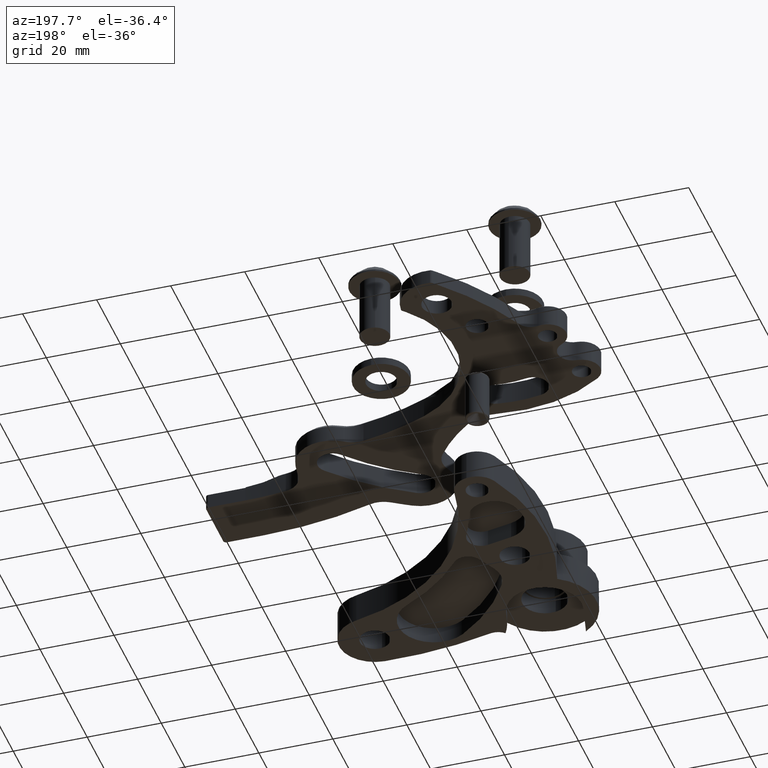
[diagram: clean part render]
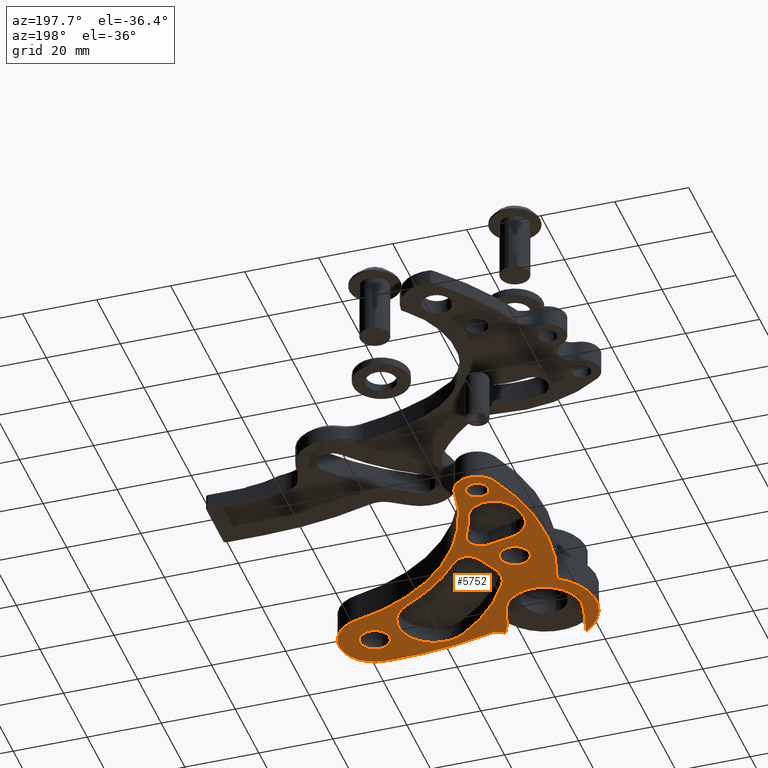
[diagram: same view with one face highlighted and labeled with its STEP entity id]
A machine part, auxiliary view. The second image highlights one B-rep face of the part: STEP entity #5752.
In plain terms, the highlighted planar face has unit normal (0, 0, -1).
Its self-contained STEP definition (entity closure, byte-faithful):
#9 = DIRECTION ( 'NONE',  ( 0.0000000000000000000, 0.0000000000000000000, 1.000000000000000000 ) ) ;
#18 = DIRECTION ( 'NONE',  ( 1.000000000000000000, 0.0000000000000000000, 0.0000000000000000000 ) ) ;
#46 = AXIS2_PLACEMENT_3D ( 'NONE', #7643, #3933, #238 ) ;
#73 = CARTESIAN_POINT ( 'NONE',  ( 4.242950505890087598, -6.105277195369654741, 0.0000000000000000000 ) ) ;
#152 = DIRECTION ( 'NONE',  ( 1.000000000000000000, 0.0000000000000000000, 0.0000000000000000000 ) ) ;
#155 = DIRECTION ( 'NONE',  ( 1.000000000000000000, 0.0000000000000000000, 0.0000000000000000000 ) ) ;
#184 = VERTEX_POINT ( 'NONE', #574 ) ;
#225 = DIRECTION ( 'NONE',  ( 1.000000000000000000, 0.0000000000000000000, 0.0000000000000000000 ) ) ;
#232 = CARTESIAN_POINT ( 'NONE',  ( 4.673074138817383982, -5.638051163920757780, 0.0000000000000000000 ) ) ;
#234 = CIRCLE ( 'NONE', #4785, 0.2360000000002146214 ) ;
#238 = DIRECTION ( 'NONE',  ( -1.000000000000000000, 0.0000000000000000000, 0.0000000000000000000 ) ) ;
#240 = EDGE_LOOP ( 'NONE', ( #3609, #1691, #2485, #3275, #4920, #7852, #1302, #1090, #277, #7911, #6828, #681, #5730, #7973 ) ) ;
#274 = AXIS2_PLACEMENT_3D ( 'NONE', #5948, #2251, #6574 ) ;
#277 = ORIENTED_EDGE ( 'NONE', *, *, #604, .T. ) ;
#308 = EDGE_CURVE ( 'NONE', #4440, #734, #7204, .T. ) ;
#332 = ORIENTED_EDGE ( 'NONE', *, *, #7198, .F. ) ;
#354 = CARTESIAN_POINT ( 'NONE',  ( 4.848425688291787772, -5.021694723945000938, 0.0000000000000000000 ) ) ;
#358 = DIRECTION ( 'NONE',  ( 1.000000000000000000, 0.0000000000000000000, 0.0000000000000000000 ) ) ;
#426 = AXIS2_PLACEMENT_3D ( 'NONE', #5370, #1674, #5985 ) ;
#433 = ORIENTED_EDGE ( 'NONE', *, *, #6178, .F. ) ;
#436 = FACE_BOUND ( 'NONE', #760, .T. ) ;
#458 = EDGE_CURVE ( 'NONE', #8011, #5266, #234, .T. ) ;
#517 = EDGE_CURVE ( 'NONE', #1740, #3239, #7878, .T. ) ;
#519 = AXIS2_PLACEMENT_3D ( 'NONE', #667, #4984, #1283 ) ;
#535 = EDGE_CURVE ( 'NONE', #7389, #4834, #6022, .T. ) ;
#547 = CARTESIAN_POINT ( 'NONE',  ( 5.146183328783787481, -6.945606711428000679, 0.0000000000000000000 ) ) ;
#562 = VERTEX_POINT ( 'NONE', #2495 ) ;
#570 = CIRCLE ( 'NONE', #8033, 0.1575000000000001676 ) ;
#574 = CARTESIAN_POINT ( 'NONE',  ( 4.533425688291787381, -5.021694723945000938, 0.0000000000000000000 ) ) ;
#604 = EDGE_CURVE ( 'NONE', #5470, #3002, #7468, .T. ) ;
#621 = FACE_OUTER_BOUND ( 'NONE', #240, .T. ) ;
#636 = CARTESIAN_POINT ( 'NONE',  ( 6.470850393701488734, -7.125834463380545714, 0.0000000000000000000 ) ) ;
#642 = CARTESIAN_POINT ( 'NONE',  ( 5.303683328783787232, -6.945606711428000679, 0.0000000000000000000 ) ) ;
#667 = CARTESIAN_POINT ( 'NONE',  ( 6.470850393700847469, -7.125834463381091055, 0.0000000000000000000 ) ) ;
#681 = ORIENTED_EDGE ( 'NONE', *, *, #1224, .F. ) ;
#734 = VERTEX_POINT ( 'NONE', #3314 ) ;
#760 = EDGE_LOOP ( 'NONE', ( #1310, #4212, #4793, #6664, #433, #4274, #6673 ) ) ;
#810 = VERTEX_POINT ( 'NONE', #4626 ) ;
#830 = CARTESIAN_POINT ( 'NONE',  ( 4.496541554581668265, -6.421401364217943275, 0.0000000000000000000 ) ) ;
#831 = CIRCLE ( 'NONE', #4098, 0.1499999999998582467 ) ;
#848 = AXIS2_PLACEMENT_3D ( 'NONE', #7548, #3843, #155 ) ;
#857 = DIRECTION ( 'NONE',  ( 1.000000000000000000, 0.0000000000000000000, 0.0000000000000000000 ) ) ;
#865 = CARTESIAN_POINT ( 'NONE',  ( 6.255757893114771484, -7.073029756062637396, 0.0000000000000000000 ) ) ;
#912 = CIRCLE ( 'NONE', #7780, 0.3799999999999850164 ) ;
#930 = DIRECTION ( 'NONE',  ( 0.0000000000000000000, 0.0000000000000000000, 1.000000000000000000 ) ) ;
#949 = EDGE_LOOP ( 'NONE', ( #6566, #3758 ) ) ;
#984 = DIRECTION ( 'NONE',  ( 0.0000000000000000000, 0.0000000000000000000, 1.000000000000000000 ) ) ;
#1027 = AXIS2_PLACEMENT_3D ( 'NONE', #2547, #6893, #3163 ) ;
#1087 = VERTEX_POINT ( 'NONE', #1370 ) ;
#1090 = ORIENTED_EDGE ( 'NONE', *, *, #4842, .T. ) ;
#1135 = DIRECTION ( 'NONE',  ( 1.000000000000000000, 0.0000000000000000000, -0.0000000000000000000 ) ) ;
#1196 = CARTESIAN_POINT ( 'NONE',  ( 5.903692971494557185, -5.050970220932416765, 0.0000000000000000000 ) ) ;
#1224 = EDGE_CURVE ( 'NONE', #3239, #4571, #3188, .T. ) ;
#1230 = DIRECTION ( 'NONE',  ( 0.0000000000000000000, 0.0000000000000000000, 1.000000000000000000 ) ) ;
#1240 = AXIS2_PLACEMENT_3D ( 'NONE', #6327, #2609, #6953 ) ;
#1253 = DIRECTION ( 'NONE',  ( 1.000000000000000000, 0.0000000000000000000, 0.0000000000000000000 ) ) ;
#1258 = DIRECTION ( 'NONE',  ( 1.000000000000000000, 0.0000000000000000000, 0.0000000000000000000 ) ) ;
#1283 = DIRECTION ( 'NONE',  ( 1.000000000000000000, 0.0000000000000000000, 0.0000000000000000000 ) ) ;
#1302 = ORIENTED_EDGE ( 'NONE', *, *, #6449, .T. ) ;
#1310 = ORIENTED_EDGE ( 'NONE', *, *, #2166, .F. ) ;
#1370 = CARTESIAN_POINT ( 'NONE',  ( 6.004372715346415923, -7.335736338836440495, 0.0000000000000000000 ) ) ;
#1479 = CARTESIAN_POINT ( 'NONE',  ( 5.903692971495518194, -5.050970220930642185, 0.0000000000000000000 ) ) ;
#1480 = CARTESIAN_POINT ( 'NONE',  ( 4.243471213325867630, -6.118072944888331754, 0.0000000000000000000 ) ) ;
#1482 = CARTESIAN_POINT ( 'NONE',  ( 5.303683328783787232, -6.945606711428000679, 0.0000000000000000000 ) ) ;
#1486 = CARTESIAN_POINT ( 'NONE',  ( 5.418336661430401158, -6.594220646339473468, 0.0000000000000000000 ) ) ;
#1528 = CARTESIAN_POINT ( 'NONE',  ( 5.890060344663274883, -7.337912890924382481, 0.0000000000000000000 ) ) ;
#1539 = VERTEX_POINT ( 'NONE', #3776 ) ;
#1659 = EDGE_CURVE ( 'NONE', #3803, #3964, #7084, .T. ) ;
#1674 = DIRECTION ( 'NONE',  ( 0.0000000000000000000, 0.0000000000000000000, 1.000000000000000000 ) ) ;
#1691 = ORIENTED_EDGE ( 'NONE', *, *, #6928, .F. ) ;
#1692 = DIRECTION ( 'NONE',  ( 0.0000000000000000000, 0.0000000000000000000, 1.000000000000000000 ) ) ;
#1704 = CARTESIAN_POINT ( 'NONE',  ( 4.496541554581668265, -6.421401364217943275, 0.0000000000000000000 ) ) ;
#1740 = VERTEX_POINT ( 'NONE', #3340 ) ;
#1768 = AXIS2_PLACEMENT_3D ( 'NONE', #1196, #5490, #1820 ) ;
#1783 = CARTESIAN_POINT ( 'NONE',  ( 7.081488472039823456, -4.963106718685666330, 0.0000000000000000000 ) ) ;
#1806 = CARTESIAN_POINT ( 'NONE',  ( 6.470850393701488734, -7.125834463380545714, 0.0000000000000000000 ) ) ;
#1820 = DIRECTION ( 'NONE',  ( 1.000000000000000000, 0.0000000000000000000, 0.0000000000000000000 ) ) ;
#1821 = VERTEX_POINT ( 'NONE', #2219 ) ;
#1868 = CARTESIAN_POINT ( 'NONE',  ( 5.594131519094850624, -6.791135217125276569, 0.0000000000000000000 ) ) ;
#1878 = AXIS2_PLACEMENT_3D ( 'NONE', #6825, #3100, #7443 ) ;
#1959 = CIRCLE ( 'NONE', #4711, 0.1500000000004800271 ) ;
#1988 = ORIENTED_EDGE ( 'NONE', *, *, #3767, .F. ) ;
#1998 = EDGE_LOOP ( 'NONE', ( #1988, #332 ) ) ;
#2045 = CIRCLE ( 'NONE', #7505, 0.1499999999998582467 ) ;
#2052 = CIRCLE ( 'NONE', #4140, 0.2360000000002146214 ) ;
#2063 = EDGE_CURVE ( 'NONE', #3002, #810, #2329, .T. ) ;
#2070 = FACE_BOUND ( 'NONE', #7446, .T. ) ;
#2072 = EDGE_CURVE ( 'NONE', #2859, #8011, #5599, .T. ) ;
#2104 = DIRECTION ( 'NONE',  ( 1.000000000000000000, 0.0000000000000000000, 0.0000000000000000000 ) ) ;
#2106 = DIRECTION ( 'NONE',  ( 1.000000000000000000, 0.0000000000000000000, 0.0000000000000000000 ) ) ;
#2166 = EDGE_CURVE ( 'NONE', #4786, #4068, #2045, .T. ) ;
#2176 = AXIS2_PLACEMENT_3D ( 'NONE', #6072, #2372, #6700 ) ;
#2182 = EDGE_CURVE ( 'NONE', #5397, #562, #3664, .T. ) ;
#2219 = CARTESIAN_POINT ( 'NONE',  ( 3.823784160112180253, -6.983717134750706990, -4.666294061864421554E-61 ) ) ;
#2251 = DIRECTION ( 'NONE',  ( -0.0000000000000000000, -0.0000000000000000000, -1.000000000000000000 ) ) ;
#2325 = CARTESIAN_POINT ( 'NONE',  ( 6.534977047736489908, -6.898713851717102052, 0.0000000000000000000 ) ) ;
#2329 = CIRCLE ( 'NONE', #46, 0.1574803149606295305 ) ;
#2338 = CIRCLE ( 'NONE', #2614, 0.2629615186702531915 ) ;
#2372 = DIRECTION ( 'NONE',  ( -0.0000000000000000000, -0.0000000000000000000, -1.000000000000000000 ) ) ;
#2378 = DIRECTION ( 'NONE',  ( 1.000000000000000000, 0.0000000000000000000, 0.0000000000000000000 ) ) ;
#2405 = DIRECTION ( 'NONE',  ( 1.000000000000000000, 0.0000000000000000000, 0.0000000000000000000 ) ) ;
#2407 = AXIS2_PLACEMENT_3D ( 'NONE', #7628, #3920, #225 ) ;
#2408 = CARTESIAN_POINT ( 'NONE',  ( 4.319487918727446640, -4.941482609266768300, 0.0000000000000000000 ) ) ;
#2485 = ORIENTED_EDGE ( 'NONE', *, *, #2072, .T. ) ;
#2489 = CIRCLE ( 'NONE', #7449, 0.1574999999999996125 ) ;
#2495 = CARTESIAN_POINT ( 'NONE',  ( 5.602407250917753601, -7.057393734671830288, 0.0000000000000000000 ) ) ;
#2547 = CARTESIAN_POINT ( 'NONE',  ( 4.085990898365237989, -6.118072944888331754, 0.0000000000000000000 ) ) ;
#2559 = CARTESIAN_POINT ( 'NONE',  ( 4.690925688291788020, -5.021694723945000938, 0.0000000000000000000 ) ) ;
#2609 = DIRECTION ( 'NONE',  ( 0.0000000000000000000, 0.0000000000000000000, 1.000000000000000000 ) ) ;
#2614 = AXIS2_PLACEMENT_3D ( 'NONE', #7037, #3311, #7656 ) ;
#2663 = DIRECTION ( 'NONE',  ( -0.9134764211361069419, 0.4068916662065832912, 0.0000000000000000000 ) ) ;
#2805 = CIRCLE ( 'NONE', #848, 0.2895186497047291807 ) ;
#2859 = VERTEX_POINT ( 'NONE', #7499 ) ;
#2886 = CARTESIAN_POINT ( 'NONE',  ( 6.113375536673084198, -6.839343158377569232, 0.0000000000000000000 ) ) ;
#2895 = EDGE_CURVE ( 'NONE', #562, #6108, #2805, .T. ) ;
#2919 = EDGE_CURVE ( 'NONE', #4834, #6820, #7560, .T. ) ;
#2938 = CARTESIAN_POINT ( 'NONE',  ( 6.706850393701703439, -7.125834463380545714, 0.0000000000000000000 ) ) ;
#2985 = CIRCLE ( 'NONE', #7735, 0.1574999999999996125 ) ;
#3002 = VERTEX_POINT ( 'NONE', #1480 ) ;
#3005 = CIRCLE ( 'NONE', #4183, 0.3764674611655223213 ) ;
#3007 = DIRECTION ( 'NONE',  ( -0.0000000000000000000, -0.0000000000000000000, -1.000000000000000000 ) ) ;
#3100 = DIRECTION ( 'NONE',  ( 0.0000000000000000000, 0.0000000000000000000, 1.000000000000000000 ) ) ;
#3161 = VERTEX_POINT ( 'NONE', #4047 ) ;
#3163 = DIRECTION ( 'NONE',  ( -1.000000000000000000, 0.0000000000000000000, 0.0000000000000000000 ) ) ;
#3180 = DIRECTION ( 'NONE',  ( 1.000000000000000000, 0.0000000000000000000, 0.0000000000000000000 ) ) ;
#3188 = LINE ( 'NONE', #830, #7952 ) ;
#3226 = CARTESIAN_POINT ( 'NONE',  ( 4.690925688291715190, -5.021694723944730043, 0.0000000000000000000 ) ) ;
#3239 = VERTEX_POINT ( 'NONE', #1704 ) ;
#3275 = ORIENTED_EDGE ( 'NONE', *, *, #458, .T. ) ;
#3285 = DIRECTION ( 'NONE',  ( 0.9134764211361084962, -0.4068916662065798495, 0.0000000000000000000 ) ) ;
#3292 = EDGE_CURVE ( 'NONE', #3964, #1539, #3871, .T. ) ;
#3305 = CARTESIAN_POINT ( 'NONE',  ( 4.362727018975751214, -5.857604062458389826, 0.0000000000000000000 ) ) ;
#3311 = DIRECTION ( 'NONE',  ( 0.0000000000000000000, 0.0000000000000000000, 1.000000000000000000 ) ) ;
#3314 = CARTESIAN_POINT ( 'NONE',  ( 6.588850393700847796, -7.125834463381091055, 0.0000000000000000000 ) ) ;
#3340 = CARTESIAN_POINT ( 'NONE',  ( 4.730048772610573771, -6.781037750492001415, 0.0000000000000000000 ) ) ;
#3369 = EDGE_LOOP ( 'NONE', ( #4814, #7255 ) ) ;
#3510 = AXIS2_PLACEMENT_3D ( 'NONE', #3589, #4828, #1135 ) ;
#3515 = FACE_BOUND ( 'NONE', #1998, .T. ) ;
#3535 = CARTESIAN_POINT ( 'NONE',  ( 5.418336661430401158, -6.594220646339473468, 0.0000000000000000000 ) ) ;
#3589 = CARTESIAN_POINT ( 'NONE',  ( 3.723327805188316741, -7.764460527275871549, 0.0000000000000000000 ) ) ;
#3598 = EDGE_CURVE ( 'NONE', #184, #5104, #4644, .T. ) ;
#3599 = CIRCLE ( 'NONE', #2176, 2.011280614520357446 ) ;
#3605 = CARTESIAN_POINT ( 'NONE',  ( 6.352850393700847142, -7.125834463381091055, 0.0000000000000000000 ) ) ;
#3609 = ORIENTED_EDGE ( 'NONE', *, *, #6061, .F. ) ;
#3664 = LINE ( 'NONE', #6290, #5129 ) ;
#3691 = EDGE_CURVE ( 'NONE', #5104, #184, #570, .T. ) ;
#3710 = CARTESIAN_POINT ( 'NONE',  ( 6.192151192244640612, -5.049391717675441704, 0.0000000000000000000 ) ) ;
#3758 = ORIENTED_EDGE ( 'NONE', *, *, #308, .F. ) ;
#3767 = EDGE_CURVE ( 'NONE', #4479, #5347, #2489, .T. ) ;
#3776 = CARTESIAN_POINT ( 'NONE',  ( 5.832776280838907645, -6.665523734812476064, 0.0000000000000000000 ) ) ;
#3782 = VECTOR ( 'NONE', #6645, 39.37007874015748854 ) ;
#3803 = VERTEX_POINT ( 'NONE', #865 ) ;
#3840 = DIRECTION ( 'NONE',  ( 0.0000000000000000000, 0.0000000000000000000, 1.000000000000000000 ) ) ;
#3843 = DIRECTION ( 'NONE',  ( 0.0000000000000000000, 0.0000000000000000000, 1.000000000000000000 ) ) ;
#3857 = DIRECTION ( 'NONE',  ( 1.000000000000000000, 0.0000000000000000000, 0.0000000000000000000 ) ) ;
#3871 = CIRCLE ( 'NONE', #7738, 2.111280614520993915 ) ;
#3920 = DIRECTION ( 'NONE',  ( 0.0000000000000000000, 0.0000000000000000000, 1.000000000000000000 ) ) ;
#3932 = AXIS2_PLACEMENT_3D ( 'NONE', #6723, #3007, #7347 ) ;
#3933 = DIRECTION ( 'NONE',  ( -0.0000000000000000000, -0.0000000000000000000, -1.000000000000000000 ) ) ;
#3964 = VERTEX_POINT ( 'NONE', #2886 ) ;
#3982 = LINE ( 'NONE', #3535, #3782 ) ;
#4019 = ORIENTED_EDGE ( 'NONE', *, *, #2182, .F. ) ;
#4038 = DIRECTION ( 'NONE',  ( 0.0000000000000000000, 0.0000000000000000000, 1.000000000000000000 ) ) ;
#4047 = CARTESIAN_POINT ( 'NONE',  ( 5.490686540299518192, -6.351218762874684565, 0.0000000000000000000 ) ) ;
#4068 = VERTEX_POINT ( 'NONE', #7325 ) ;
#4071 = EDGE_CURVE ( 'NONE', #6108, #1087, #5957, .T. ) ;
#4098 = AXIS2_PLACEMENT_3D ( 'NONE', #5418, #6792, #18 ) ;
#4140 = AXIS2_PLACEMENT_3D ( 'NONE', #636, #4948, #1253 ) ;
#4183 = AXIS2_PLACEMENT_3D ( 'NONE', #4683, #984, #5296 ) ;
#4198 = AXIS2_PLACEMENT_3D ( 'NONE', #7755, #4038, #358 ) ;
#4212 = ORIENTED_EDGE ( 'NONE', *, *, #7000, .F. ) ;
#4240 = CARTESIAN_POINT ( 'NONE',  ( 5.200115906594594328, -6.655692891948683965, 0.0000000000000000000 ) ) ;
#4248 = CIRCLE ( 'NONE', #519, 0.1180000000000002158 ) ;
#4274 = ORIENTED_EDGE ( 'NONE', *, *, #5787, .F. ) ;
#4326 = DIRECTION ( 'NONE',  ( 1.000000000000000000, 0.0000000000000000000, 0.0000000000000000000 ) ) ;
#4440 = VERTEX_POINT ( 'NONE', #3605 ) ;
#4464 = DIRECTION ( 'NONE',  ( 0.03106656399508397198, -0.9995173178097213063, -0.0000000000000000000 ) ) ;
#4479 = VERTEX_POINT ( 'NONE', #6712 ) ;
#4495 = AXIS2_PLACEMENT_3D ( 'NONE', #232, #4545, #857 ) ;
#4545 = DIRECTION ( 'NONE',  ( -0.0000000000000000000, -0.0000000000000000000, -1.000000000000000000 ) ) ;
#4571 = VERTEX_POINT ( 'NONE', #6823 ) ;
#4624 = CARTESIAN_POINT ( 'NONE',  ( 5.744059116766789153, -6.786475232526000489, 0.0000000000000000000 ) ) ;
#4626 = CARTESIAN_POINT ( 'NONE',  ( 4.175053072887833672, -6.247949727530211383, 0.0000000000000000000 ) ) ;
#4628 = VERTEX_POINT ( 'NONE', #6878 ) ;
#4644 = CIRCLE ( 'NONE', #426, 0.1575000000000001676 ) ;
#4683 = CARTESIAN_POINT ( 'NONE',  ( 4.707086355928432830, -5.705471237696857933, 0.0000000000000000000 ) ) ;
#4711 = AXIS2_PLACEMENT_3D ( 'NONE', #4624, #930, #5245 ) ;
#4785 = AXIS2_PLACEMENT_3D ( 'NONE', #1806, #6117, #2405 ) ;
#4786 = VERTEX_POINT ( 'NONE', #1486 ) ;
#4793 = ORIENTED_EDGE ( 'NONE', *, *, #2919, .F. ) ;
#4814 = ORIENTED_EDGE ( 'NONE', *, *, #3691, .F. ) ;
#4828 = DIRECTION ( 'NONE',  ( 0.0000000000000000000, 0.0000000000000000000, 1.000000000000000000 ) ) ;
#4834 = VERTEX_POINT ( 'NONE', #7111 ) ;
#4842 = EDGE_CURVE ( 'NONE', #7122, #5470, #6316, .T. ) ;
#4920 = ORIENTED_EDGE ( 'NONE', *, *, #6881, .T. ) ;
#4926 = CARTESIAN_POINT ( 'NONE',  ( 4.336347985208998779, -6.781037750492001415, 0.0000000000000000000 ) ) ;
#4948 = DIRECTION ( 'NONE',  ( 0.0000000000000000000, 0.0000000000000000000, 1.000000000000000000 ) ) ;
#4953 = DIRECTION ( 'NONE',  ( 0.0000000000000000000, 0.0000000000000000000, 1.000000000000000000 ) ) ;
#4963 = VERTEX_POINT ( 'NONE', #7841 ) ;
#4984 = DIRECTION ( 'NONE',  ( 0.0000000000000000000, 0.0000000000000000000, 1.000000000000000000 ) ) ;
#5104 = VERTEX_POINT ( 'NONE', #354 ) ;
#5129 = VECTOR ( 'NONE', #4464, 39.37007874015748143 ) ;
#5156 = FACE_BOUND ( 'NONE', #949, .T. ) ;
#5208 = ORIENTED_EDGE ( 'NONE', *, *, #1659, .F. ) ;
#5245 = DIRECTION ( 'NONE',  ( 1.000000000000000000, 0.0000000000000000000, 0.0000000000000000000 ) ) ;
#5255 = VERTEX_POINT ( 'NONE', #2325 ) ;
#5257 = VECTOR ( 'NONE', #3285, 39.37007874015748143 ) ;
#5266 = VERTEX_POINT ( 'NONE', #2938 ) ;
#5281 = EDGE_CURVE ( 'NONE', #5255, #4628, #3599, .T. ) ;
#5296 = DIRECTION ( 'NONE',  ( 1.000000000000000000, 0.0000000000000000000, 0.0000000000000000000 ) ) ;
#5347 = VERTEX_POINT ( 'NONE', #547 ) ;
#5370 = CARTESIAN_POINT ( 'NONE',  ( 4.690925688291788020, -5.021694723945000938, 0.0000000000000000000 ) ) ;
#5384 = CARTESIAN_POINT ( 'NONE',  ( 4.336347985208998779, -6.781037750492001415, 0.0000000000000000000 ) ) ;
#5397 = VERTEX_POINT ( 'NONE', #1868 ) ;
#5418 = CARTESIAN_POINT ( 'NONE',  ( 5.377664951355036749, -6.449839858145534954, 0.0000000000000000000 ) ) ;
#5428 = ORIENTED_EDGE ( 'NONE', *, *, #6563, .F. ) ;
#5436 = LINE ( 'NONE', #7014, #5257 ) ;
#5470 = VERTEX_POINT ( 'NONE', #73 ) ;
#5490 = DIRECTION ( 'NONE',  ( 0.0000000000000000000, 0.0000000000000000000, 1.000000000000000000 ) ) ;
#5536 = DIRECTION ( 'NONE',  ( 1.000000000000000000, 0.0000000000000000000, 0.0000000000000000000 ) ) ;
#5583 = AXIS2_PLACEMENT_3D ( 'NONE', #4926, #1230, #5536 ) ;
#5599 = CIRCLE ( 'NONE', #7254, 2.386983302157748899 ) ;
#5609 = EDGE_CURVE ( 'NONE', #4571, #810, #7793, .T. ) ;
#5662 = EDGE_CURVE ( 'NONE', #6692, #1740, #7586, .T. ) ;
#5730 = ORIENTED_EDGE ( 'NONE', *, *, #517, .F. ) ;
#5752 = ADVANCED_FACE ( 'NONE', ( #621, #2070, #436, #6799, #5156, #3515 ), #6052, .T. ) ;
#5787 = EDGE_CURVE ( 'NONE', #3161, #4963, #6615, .T. ) ;
#5790 = DIRECTION ( 'NONE',  ( 0.0000000000000000000, 0.0000000000000000000, 1.000000000000000000 ) ) ;
#5794 = DIRECTION ( 'NONE',  ( 0.0000000000000000000, 0.0000000000000000000, 1.000000000000000000 ) ) ;
#5948 = CARTESIAN_POINT ( 'NONE',  ( 4.336347985208999667, -6.781037750491999638, 0.0000000000000000000 ) ) ;
#5957 = CIRCLE ( 'NONE', #1768, 2.286983302156861075 ) ;
#5985 = DIRECTION ( 'NONE',  ( 1.000000000000000000, 0.0000000000000000000, 0.0000000000000000000 ) ) ;
#6004 = DIRECTION ( 'NONE',  ( 1.000000000000000000, 0.0000000000000000000, 0.0000000000000000000 ) ) ;
#6022 = CIRCLE ( 'NONE', #6557, 2.000000000000027978 ) ;
#6029 = ORIENTED_EDGE ( 'NONE', *, *, #3292, .F. ) ;
#6052 = PLANE ( 'NONE',  #3510 ) ;
#6061 = EDGE_CURVE ( 'NONE', #1821, #6692, #5436, .T. ) ;
#6072 = CARTESIAN_POINT ( 'NONE',  ( 7.081488472035353254, -4.963106718682039009, 0.0000000000000000000 ) ) ;
#6082 = DIRECTION ( 'NONE',  ( -0.0000000000000000000, -0.0000000000000000000, -1.000000000000000000 ) ) ;
#6108 = VERTEX_POINT ( 'NONE', #1528 ) ;
#6117 = DIRECTION ( 'NONE',  ( 0.0000000000000000000, 0.0000000000000000000, 1.000000000000000000 ) ) ;
#6178 = EDGE_CURVE ( 'NONE', #4963, #7389, #3005, .T. ) ;
#6290 = CARTESIAN_POINT ( 'NONE',  ( 5.602407250917753601, -7.057393734671830288, 0.0000000000000000000 ) ) ;
#6316 = CIRCLE ( 'NONE', #4198, 3.980996278274994804 ) ;
#6327 = CARTESIAN_POINT ( 'NONE',  ( 5.118407220403105029, -6.365634655086783944, 0.0000000000000000000 ) ) ;
#6449 = EDGE_CURVE ( 'NONE', #4628, #7122, #912, .T. ) ;
#6526 = EDGE_CURVE ( 'NONE', #1087, #3803, #2338, .T. ) ;
#6557 = AXIS2_PLACEMENT_3D ( 'NONE', #3710, #9, #4326 ) ;
#6563 = EDGE_CURVE ( 'NONE', #1539, #5397, #1959, .T. ) ;
#6566 = ORIENTED_EDGE ( 'NONE', *, *, #7227, .F. ) ;
#6574 = DIRECTION ( 'NONE',  ( 1.000000000000000000, 0.0000000000000000000, 0.0000000000000000000 ) ) ;
#6615 = CIRCLE ( 'NONE', #3932, 2.111280614520793630 ) ;
#6645 = DIRECTION ( 'NONE',  ( 0.9625385879605000694, 0.2711447338360206127, -0.0000000000000000000 ) ) ;
#6664 = ORIENTED_EDGE ( 'NONE', *, *, #535, .F. ) ;
#6673 = ORIENTED_EDGE ( 'NONE', *, *, #7536, .F. ) ;
#6692 = VERTEX_POINT ( 'NONE', #7228 ) ;
#6700 = DIRECTION ( 'NONE',  ( 1.000000000000000000, 0.0000000000000000000, 0.0000000000000000000 ) ) ;
#6712 = CARTESIAN_POINT ( 'NONE',  ( 5.461183328783786983, -6.945606711428000679, 0.0000000000000000000 ) ) ;
#6723 = CARTESIAN_POINT ( 'NONE',  ( 7.081488472039823456, -4.963106718685666330, 0.0000000000000000000 ) ) ;
#6792 = DIRECTION ( 'NONE',  ( 0.0000000000000000000, 0.0000000000000000000, 1.000000000000000000 ) ) ;
#6799 = FACE_BOUND ( 'NONE', #3369, .T. ) ;
#6820 = VERTEX_POINT ( 'NONE', #4240 ) ;
#6823 = CARTESIAN_POINT ( 'NONE',  ( 4.352687000072045009, -6.357323936468874948, 0.0000000000000000000 ) ) ;
#6825 = CARTESIAN_POINT ( 'NONE',  ( 6.470850393700847469, -7.125834463381091055, 0.0000000000000000000 ) ) ;
#6828 = ORIENTED_EDGE ( 'NONE', *, *, #5609, .F. ) ;
#6878 = CARTESIAN_POINT ( 'NONE',  ( 5.070811617323413678, -5.012384464887455593, 0.0000000000000000000 ) ) ;
#6881 = EDGE_CURVE ( 'NONE', #5266, #5255, #2052, .T. ) ;
#6893 = DIRECTION ( 'NONE',  ( -0.0000000000000000000, -0.0000000000000000000, -1.000000000000000000 ) ) ;
#6909 = DIRECTION ( 'NONE',  ( 0.0000000000000000000, 0.0000000000000000000, 1.000000000000000000 ) ) ;
#6928 = EDGE_CURVE ( 'NONE', #2859, #1821, #7460, .T. ) ;
#6953 = DIRECTION ( 'NONE',  ( 1.000000000000000000, 0.0000000000000000000, 0.0000000000000000000 ) ) ;
#6984 = AXIS2_PLACEMENT_3D ( 'NONE', #5384, #1692, #6004 ) ;
#7000 = EDGE_CURVE ( 'NONE', #6820, #4786, #3982, .T. ) ;
#7014 = CARTESIAN_POINT ( 'NONE',  ( 4.030150786610451341, -7.075639442280963642, 0.0000000000000000000 ) ) ;
#7030 = ORIENTED_EDGE ( 'NONE', *, *, #4071, .F. ) ;
#7037 = CARTESIAN_POINT ( 'NONE',  ( 5.992796374444518293, -7.073029756062637396, 0.0000000000000000000 ) ) ;
#7084 = CIRCLE ( 'NONE', #2407, 0.2629615186702531915 ) ;
#7111 = CARTESIAN_POINT ( 'NONE',  ( 4.927921180227526676, -6.599140883416569459, 0.0000000000000000000 ) ) ;
#7122 = VERTEX_POINT ( 'NONE', #2408 ) ;
#7198 = EDGE_CURVE ( 'NONE', #5347, #4479, #2985, .T. ) ;
#7204 = CIRCLE ( 'NONE', #1878, 0.1180000000000002158 ) ;
#7227 = EDGE_CURVE ( 'NONE', #734, #4440, #4248, .T. ) ;
#7228 = CARTESIAN_POINT ( 'NONE',  ( 4.176154415836330180, -7.140674136766059554, 0.0000000000000000000 ) ) ;
#7254 = AXIS2_PLACEMENT_3D ( 'NONE', #1479, #5790, #2104 ) ;
#7255 = ORIENTED_EDGE ( 'NONE', *, *, #3598, .F. ) ;
#7295 = CARTESIAN_POINT ( 'NONE',  ( 6.533077353579108681, -7.353482888511250870, 0.0000000000000000000 ) ) ;
#7325 = CARTESIAN_POINT ( 'NONE',  ( 5.527664951354894995, -6.449839858145534954, 0.0000000000000000000 ) ) ;
#7347 = DIRECTION ( 'NONE',  ( 1.000000000000000000, 0.0000000000000000000, 0.0000000000000000000 ) ) ;
#7389 = VERTEX_POINT ( 'NONE', #3305 ) ;
#7437 = ORIENTED_EDGE ( 'NONE', *, *, #2895, .F. ) ;
#7443 = DIRECTION ( 'NONE',  ( 1.000000000000000000, 0.0000000000000000000, 0.0000000000000000000 ) ) ;
#7446 = EDGE_LOOP ( 'NONE', ( #6029, #5208, #7647, #7030, #7437, #4019, #5428 ) ) ;
#7449 = AXIS2_PLACEMENT_3D ( 'NONE', #1482, #5794, #2106 ) ;
#7460 = CIRCLE ( 'NONE', #274, 0.5511811023622068539 ) ;
#7468 = CIRCLE ( 'NONE', #1027, 0.1574803149606295305 ) ;
#7499 = CARTESIAN_POINT ( 'NONE',  ( 4.752758299441709688, -7.142151386072558061, 0.0000000000000000000 ) ) ;
#7505 = AXIS2_PLACEMENT_3D ( 'NONE', #7541, #3840, #152 ) ;
#7536 = EDGE_CURVE ( 'NONE', #4068, #3161, #831, .T. ) ;
#7541 = CARTESIAN_POINT ( 'NONE',  ( 5.377664951355036749, -6.449839858145534954, 0.0000000000000000000 ) ) ;
#7548 = CARTESIAN_POINT ( 'NONE',  ( 5.891786155126516711, -7.048399385013009777, 0.0000000000000000000 ) ) ;
#7560 = CIRCLE ( 'NONE', #1240, 0.3013471257048480623 ) ;
#7569 = DIRECTION ( 'NONE',  ( 0.0000000000000000000, 0.0000000000000000000, 1.000000000000000000 ) ) ;
#7586 = CIRCLE ( 'NONE', #6984, 0.3937007874015746034 ) ;
#7628 = CARTESIAN_POINT ( 'NONE',  ( 5.992796374444518293, -7.073029756062637396, 0.0000000000000000000 ) ) ;
#7643 = CARTESIAN_POINT ( 'NONE',  ( 4.085990898365237989, -6.118072944888331754, 0.0000000000000000000 ) ) ;
#7647 = ORIENTED_EDGE ( 'NONE', *, *, #6526, .F. ) ;
#7656 = DIRECTION ( 'NONE',  ( 1.000000000000000000, 0.0000000000000000000, 0.0000000000000000000 ) ) ;
#7735 = AXIS2_PLACEMENT_3D ( 'NONE', #642, #4953, #1258 ) ;
#7738 = AXIS2_PLACEMENT_3D ( 'NONE', #1783, #6082, #2378 ) ;
#7755 = CARTESIAN_POINT ( 'NONE',  ( 8.210783650954219581, -5.781809267176094558, 0.0000000000000000000 ) ) ;
#7780 = AXIS2_PLACEMENT_3D ( 'NONE', #3226, #7569, #3857 ) ;
#7793 = CIRCLE ( 'NONE', #4495, 0.7874015748031497619 ) ;
#7841 = CARTESIAN_POINT ( 'NONE',  ( 5.066401330452885432, -5.593130246073558354, 0.0000000000000000000 ) ) ;
#7852 = ORIENTED_EDGE ( 'NONE', *, *, #5281, .T. ) ;
#7878 = CIRCLE ( 'NONE', #5583, 0.3937007874015746034 ) ;
#7911 = ORIENTED_EDGE ( 'NONE', *, *, #2063, .T. ) ;
#7952 = VECTOR ( 'NONE', #2663, 39.37007874015748854 ) ;
#7973 = ORIENTED_EDGE ( 'NONE', *, *, #5662, .F. ) ;
#8011 = VERTEX_POINT ( 'NONE', #7295 ) ;
#8033 = AXIS2_PLACEMENT_3D ( 'NONE', #2559, #6909, #3180 ) ;